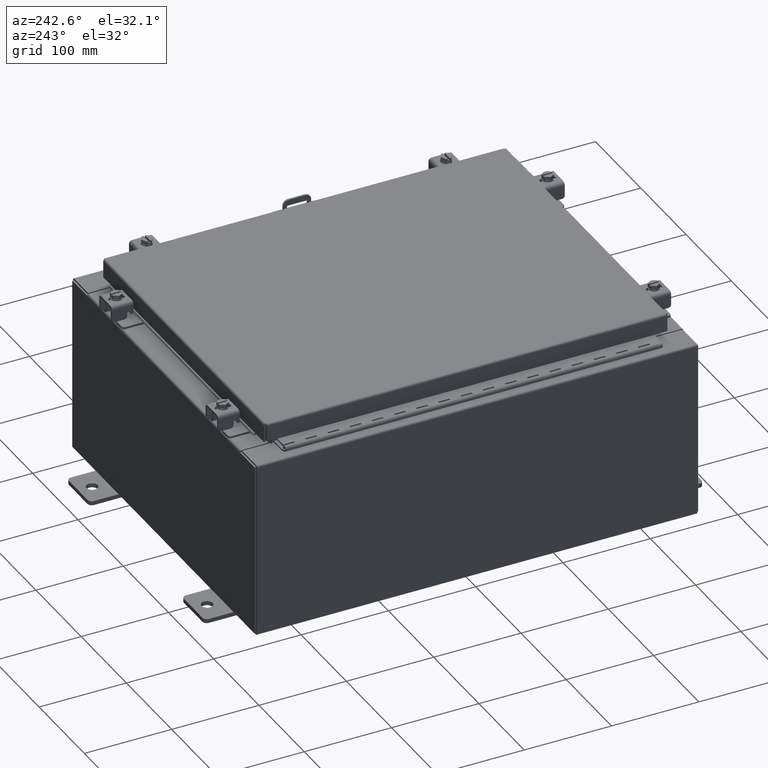
[diagram: clean part render]
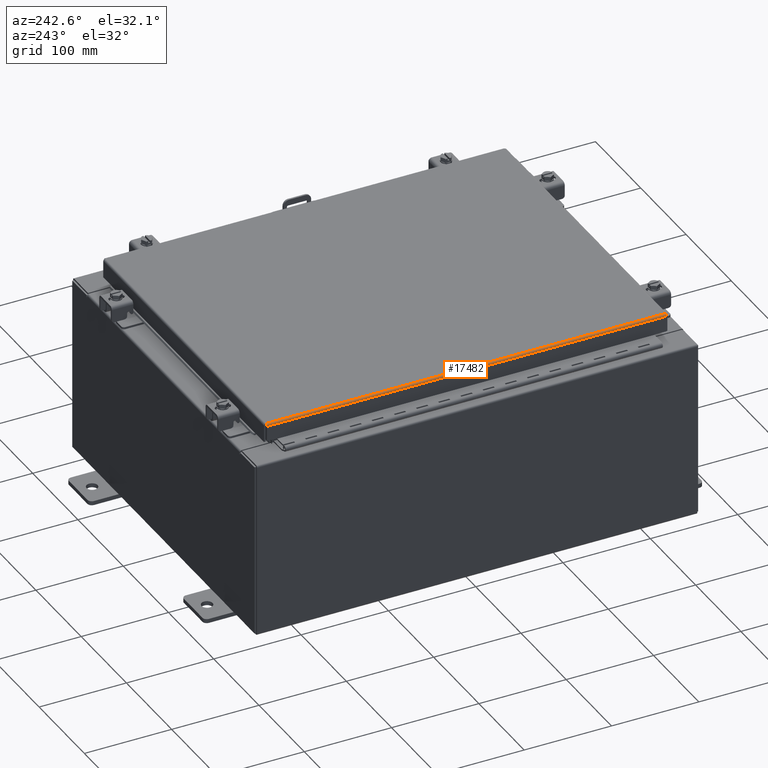
[diagram: same view with one face highlighted and labeled with its STEP entity id]
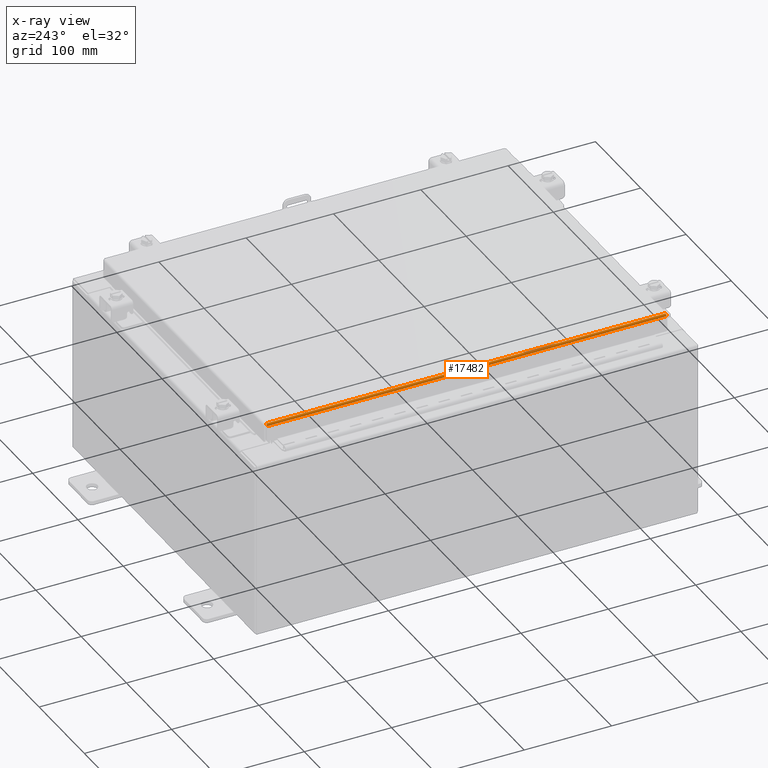
[diagram: x-ray of the same camera — body ghosted, the highlighted face saturated]
A machine part, auxiliary view. The second image highlights one B-rep face of the part: STEP entity #17482.
The next image is the same camera in x-ray: the body ghosted, the highlighted face saturated — about 0% of this face is hidden behind the body in this view.
In plain terms, the highlighted cylindrical surface (edge-blend (fillet) strip) has radius 2.2276 mm, axis along (0, 1, 0).
Its self-contained STEP definition (entity closure, byte-faithful):
#379 = CARTESIAN_POINT ( 'NONE',  ( -7.044195747341798400, -9.005824110156778400, -0.01756921792167976500 ) ) ;
#571 = CARTESIAN_POINT ( 'NONE',  ( -7.034467384578526600, 9.005919288125424400, -0.01106893374133176100 ) ) ;
#782 = EDGE_CURVE ( 'NONE', #27772, #2450, #3736, .T. ) ;
#1242 = DIRECTION ( 'NONE',  ( 3.645815397208356400E-031, -1.000000000000000000, -1.074717912135910000E-045 ) ) ;
#2040 = VERTEX_POINT ( 'NONE', #14258 ) ;
#2450 = VERTEX_POINT ( 'NONE', #13699 ) ;
#2664 = CARTESIAN_POINT ( 'NONE',  ( -7.066931066258665500, -9.005538576250844000, -0.04353261542147222900 ) ) ;
#2856 = CARTESIAN_POINT ( 'NONE',  ( -7.001779903154991700, 9.006204822031355300, -2.037547758946368100E-016 ) ) ;
#3736 = LINE ( 'NONE', #3870, #10508 ) ;
#3870 = CARTESIAN_POINT ( 'NONE',  ( -6.990299999999997700, 9.006300000000001300, -2.048885995248197400E-016 ) ) ;
#4908 = CARTESIAN_POINT ( 'NONE',  ( -7.077999999999998500, -9.005253042344911300, -0.07622009684500735700 ) ) ;
#5684 = CARTESIAN_POINT ( 'NONE',  ( -7.077999999999998500, -9.093999999999999400, -0.08770000000000004200 ) ) ;
#7290 = CARTESIAN_POINT ( 'NONE',  ( -7.077999999999998500, 9.005157864376270600, -0.08770000000000004200 ) ) ;
#7527 = ORIENTED_EDGE ( 'NONE', *, *, #21470, .T. ) ;
#9419 = CARTESIAN_POINT ( 'NONE',  ( -6.990299999999997700, -9.006299999999997800, -2.048885995248197400E-016 ) ) ;
#10150 = CARTESIAN_POINT ( 'NONE',  ( -6.990299999999997700, 9.006300000000001300, -0.08770000000000030500 ) ) ;
#10508 = VECTOR ( 'NONE', #18213, 39.37007874015748100 ) ;
#11132 = B_SPLINE_CURVE_WITH_KNOTS ( 'NONE', 3,
 ( #7290, #20927, #25557, #11862, #27857, #14178, #571, #16467, #2856, #18748 ),
 .UNSPECIFIED., .F., .F.,
 ( 4, 2, 2, 2, 4 ),
 ( 0.0000000000000000000, 0.2500000000000000000, 0.5000000000000000000, 0.7500000000000000000, 1.000000000000000000 ),
 .UNSPECIFIED. ) ;
#11668 = CARTESIAN_POINT ( 'NONE',  ( -7.001779903154991700, -9.006204822031353500, -2.043883832173860400E-016 ) ) ;
#11862 = CARTESIAN_POINT ( 'NONE',  ( -7.066931066258662900, 9.005538576250845800, -0.04353261542147222200 ) ) ;
#13699 = CARTESIAN_POINT ( 'NONE',  ( -6.990299999999997700, -9.006299999999997800, -2.048885995248197400E-016 ) ) ;
#13985 = CARTESIAN_POINT ( 'NONE',  ( -7.034467384578525700, -9.005919288125420900, -0.01106893374133176100 ) ) ;
#14178 = CARTESIAN_POINT ( 'NONE',  ( -7.044195747341797500, 9.005824110156780200, -0.01756921792167976500 ) ) ;
#14258 = CARTESIAN_POINT ( 'NONE',  ( -7.077999999999998500, 9.005157864376270600, -0.08770000000000004200 ) ) ;
#14506 = CYLINDRICAL_SURFACE ( 'NONE', #17278, 0.08770000000000026400 ) ;
#14736 = DIRECTION ( 'NONE',  ( -0.0000000000000000000, 1.000000000000000000, -0.0000000000000000000 ) ) ;
#15160 = CARTESIAN_POINT ( 'NONE',  ( -6.990299999999997700, 9.006300000000001300, -2.048885995248197400E-016 ) ) ;
#16271 = CARTESIAN_POINT ( 'NONE',  ( -7.060430782078317000, -9.005633754219486400, -0.03380425265820009900 ) ) ;
#16467 = CARTESIAN_POINT ( 'NONE',  ( -7.013255289458305300, 9.006109644062711100, -0.002282596256188923800 ) ) ;
#17278 = AXIS2_PLACEMENT_3D ( 'NONE', #10150, #14736, #19293 ) ;
#17482 = ADVANCED_FACE ( 'NONE', ( #27357 ), #14506, .T. ) ;
#18213 = DIRECTION ( 'NONE',  ( 0.0000000000000000000, -1.000000000000000000, 0.0000000000000000000 ) ) ;
#18559 = CARTESIAN_POINT ( 'NONE',  ( -7.075717403743809100, -9.005348220313557300, -0.06474471054169118900 ) ) ;
#18748 = CARTESIAN_POINT ( 'NONE',  ( -6.990299999999997700, 9.006300000000001300, -2.048885995248197400E-016 ) ) ;
#19293 = DIRECTION ( 'NONE',  ( -1.000000000000000000, 0.0000000000000000000, 3.114992011019675100E-015 ) ) ;
#20837 = CARTESIAN_POINT ( 'NONE',  ( -7.077999999999998500, -9.005157864376265300, -0.08770000000000007000 ) ) ;
#20927 = CARTESIAN_POINT ( 'NONE',  ( -7.077999999999998500, 9.005253042344914900, -0.07622009684500732900 ) ) ;
#21229 = CARTESIAN_POINT ( 'NONE',  ( -7.077999999999998500, -9.005157864376265300, -0.08770000000000007000 ) ) ;
#21470 = EDGE_CURVE ( 'NONE', #2040, #27564, #29423, .T. ) ;
#21758 = B_SPLINE_CURVE_WITH_KNOTS ( 'NONE', 3,
 ( #9419, #11668, #27659, #13985, #379, #16271, #2664, #18559, #4908, #20837 ),
 .UNSPECIFIED., .F., .F.,
 ( 4, 2, 2, 2, 4 ),
 ( 0.0000000000000000000, 0.2500000000000000000, 0.5000000000000000000, 0.7500000000000000000, 1.000000000000000000 ),
 .UNSPECIFIED. ) ;
#21828 = EDGE_CURVE ( 'NONE', #2040, #27772, #11132, .T. ) ;
#22394 = ORIENTED_EDGE ( 'NONE', *, *, #21828, .F. ) ;
#23358 = VECTOR ( 'NONE', #1242, 39.37007874015748100 ) ;
#24683 = ORIENTED_EDGE ( 'NONE', *, *, #29464, .F. ) ;
#24928 = EDGE_LOOP ( 'NONE', ( #28833, #22394, #7527, #24683 ) ) ;
#25557 = CARTESIAN_POINT ( 'NONE',  ( -7.075717403743809100, 9.005348220313560900, -0.06474471054169118900 ) ) ;
#27357 = FACE_OUTER_BOUND ( 'NONE', #24928, .T. ) ;
#27564 = VERTEX_POINT ( 'NONE', #21229 ) ;
#27659 = CARTESIAN_POINT ( 'NONE',  ( -7.013255289458308900, -9.006109644062711100, -0.002282596256188924700 ) ) ;
#27772 = VERTEX_POINT ( 'NONE', #15160 ) ;
#27857 = CARTESIAN_POINT ( 'NONE',  ( -7.060430782078318800, 9.005633754219491700, -0.03380425265820009200 ) ) ;
#28833 = ORIENTED_EDGE ( 'NONE', *, *, #782, .F. ) ;
#29423 = LINE ( 'NONE', #5684, #23358 ) ;
#29464 = EDGE_CURVE ( 'NONE', #2450, #27564, #21758, .T. ) ;